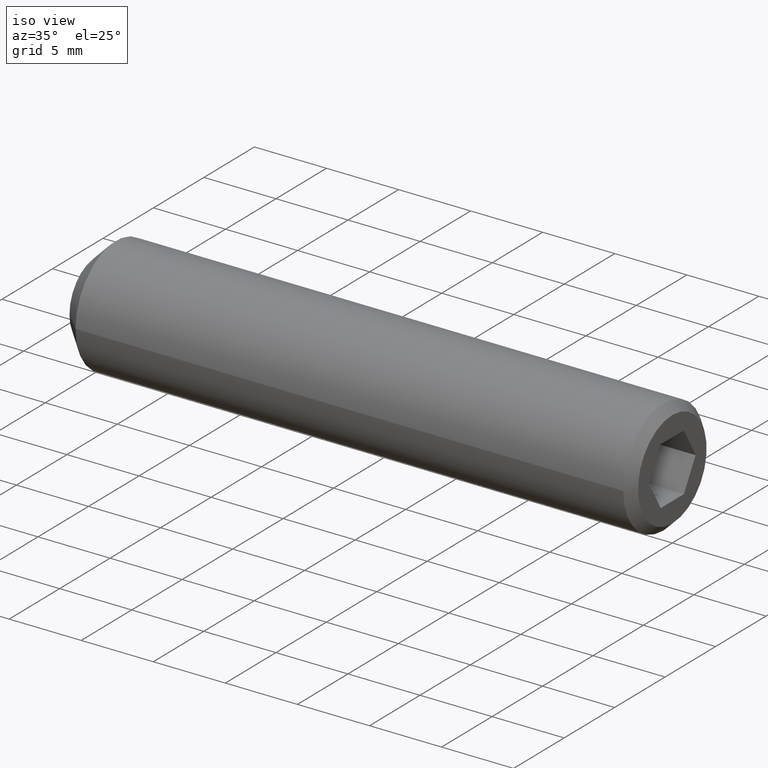
[diagram: clean part render]
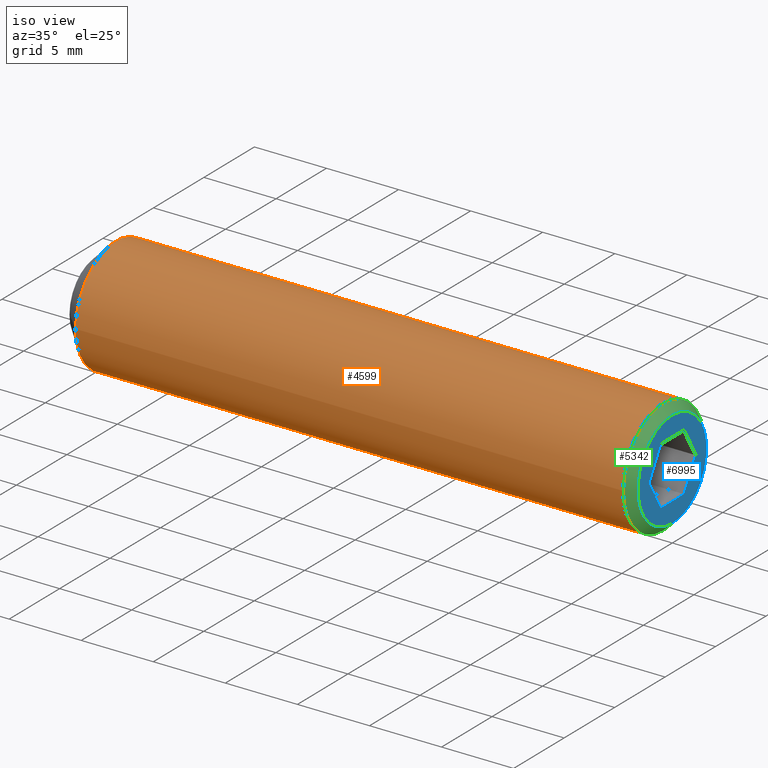
[diagram: same view with three faces highlighted in distinct colors, each labeled with its STEP entity id]
A machine part, iso view with three faces highlighted in distinct colors.
Their STEP definitions:

[orange] entity #4599 — the highlighted cylindrical surface (bore or boss wall) has radius 4 mm, axis along (-1, -0, -0).
#508 = CARTESIAN_POINT ( 'NONE',  ( 40.00000000000000000, 0.0000000000000000000, 0.0000000000000000000 ) ) ;
#1104 = CIRCLE ( 'NONE', #6778, 4.000000000000000000 ) ;
#1243 = AXIS2_PLACEMENT_3D ( 'NONE', #16921, #16802, #11553 ) ;
#1779 = CARTESIAN_POINT ( 'NONE',  ( 1.399999999999984100, -4.000000000000000000, 0.0000000000000000000 ) ) ;
#4555 = DIRECTION ( 'NONE',  ( -1.000000000000000000, -0.0000000000000000000, -0.0000000000000000000 ) ) ;
#4599 = ADVANCED_FACE ( 'NONE', ( #10565, #15870 ), #10146, .T. ) ;
#4856 = EDGE_LOOP ( 'NONE', ( #13042 ) ) ;
#5066 = EDGE_CURVE ( 'NONE', #10683, #10683, #9297, .T. ) ;
#6382 = AXIS2_PLACEMENT_3D ( 'NONE', #508, #4555, #12859 ) ;
#6778 = AXIS2_PLACEMENT_3D ( 'NONE', #14752, #12258, #16144 ) ;
#7002 = ORIENTED_EDGE ( 'NONE', *, *, #17359, .F. ) ;
#7495 = VERTEX_POINT ( 'NONE', #1779 ) ;
#9297 = CIRCLE ( 'NONE', #1243, 4.000000000000000000 ) ;
#10146 = CYLINDRICAL_SURFACE ( 'NONE', #6382, 4.000000000000000000 ) ;
#10565 = FACE_OUTER_BOUND ( 'NONE', #4856, .T. ) ;
#10683 = VERTEX_POINT ( 'NONE', #15615 ) ;
#11553 = DIRECTION ( 'NONE',  ( 0.0000000000000000000, 0.0000000000000000000, -1.000000000000000000 ) ) ;
#12258 = DIRECTION ( 'NONE',  ( -1.000000000000000000, 3.242134472605243700E-017, -0.0000000000000000000 ) ) ;
#12676 = EDGE_LOOP ( 'NONE', ( #7002 ) ) ;
#12859 = DIRECTION ( 'NONE',  ( 0.0000000000000000000, 0.0000000000000000000, 1.000000000000000000 ) ) ;
#13042 = ORIENTED_EDGE ( 'NONE', *, *, #5066, .T. ) ;
#14752 = CARTESIAN_POINT ( 'NONE',  ( 1.399999999999984400, -4.538988261647290200E-017, 0.0000000000000000000 ) ) ;
#15615 = CARTESIAN_POINT ( 'NONE',  ( 39.39999999999999900, 0.0000000000000000000, -4.000000000000000000 ) ) ;
#15870 = FACE_OUTER_BOUND ( 'NONE', #12676, .T. ) ;
#16144 = DIRECTION ( 'NONE',  ( -5.421010862427522200E-017, -1.000000000000000000, 0.0000000000000000000 ) ) ;
#16802 = DIRECTION ( 'NONE',  ( -1.000000000000000000, 0.0000000000000000000, 0.0000000000000000000 ) ) ;
#16921 = CARTESIAN_POINT ( 'NONE',  ( 39.39999999999999900, 0.0000000000000000000, 0.0000000000000000000 ) ) ;
#17359 = EDGE_CURVE ( 'NONE', #7495, #7495, #1104, .T. ) ;

[blue] entity #6995 — the highlighted planar face has unit normal (1, 0, 0).
#442 = ORIENTED_EDGE ( 'NONE', *, *, #3732, .F. ) ;
#598 = DIRECTION ( 'NONE',  ( 0.0000000000000000000, 0.4999999999999999400, 0.8660254037844387100 ) ) ;
#886 = CARTESIAN_POINT ( 'NONE',  ( 40.00000000000000000, -2.309401076758506000, 0.0000000000000000000 ) ) ;
#1237 = DIRECTION ( 'NONE',  ( 0.0000000000000000000, 0.4999999999999997800, -0.8660254037844387100 ) ) ;
#1318 = VERTEX_POINT ( 'NONE', #6176 ) ;
#1867 = VECTOR ( 'NONE', #598, 999.9999999999998900 ) ;
#2707 = EDGE_CURVE ( 'NONE', #8942, #12248, #13124, .T. ) ;
#2737 = LINE ( 'NONE', #11471, #4658 ) ;
#3183 = CARTESIAN_POINT ( 'NONE',  ( 40.00000000000000000, 0.0000000000000000000, 0.0000000000000000000 ) ) ;
#3612 = CARTESIAN_POINT ( 'NONE',  ( 40.00000000000000000, 0.0000000000000000000, 0.0000000000000000000 ) ) ;
#3716 = VERTEX_POINT ( 'NONE', #10050 ) ;
#3732 = EDGE_CURVE ( 'NONE', #11398, #8942, #6127, .T. ) ;
#4505 = VERTEX_POINT ( 'NONE', #9433 ) ;
#4550 = DIRECTION ( 'NONE',  ( 0.0000000000000000000, -0.5000000000000003300, -0.8660254037844384900 ) ) ;
#4658 = VECTOR ( 'NONE', #7417, 1000.000000000000000 ) ;
#4887 = ORIENTED_EDGE ( 'NONE', *, *, #10494, .F. ) ;
#4991 = DIRECTION ( 'NONE',  ( 1.000000000000000000, 0.0000000000000000000, 0.0000000000000000000 ) ) ;
#5101 = VERTEX_POINT ( 'NONE', #886 ) ;
#5727 = CARTESIAN_POINT ( 'NONE',  ( 40.00000000000000000, 2.309401076758500700, -2.008531840100152800E-016 ) ) ;
#5752 = CARTESIAN_POINT ( 'NONE',  ( 40.00000000000000000, 1.154700538379249500, 2.000000000000000000 ) ) ;
#6127 = LINE ( 'NONE', #5727, #9942 ) ;
#6176 = CARTESIAN_POINT ( 'NONE',  ( 40.00000000000000000, 0.0000000000000000000, -3.399999999999997200 ) ) ;
#6995 = ADVANCED_FACE ( 'NONE', ( #11143, #13894 ), #10330, .T. ) ;
#7276 = CARTESIAN_POINT ( 'NONE',  ( 40.00000000000000000, -1.154700538379254300, 2.000000000000000000 ) ) ;
#7417 = DIRECTION ( 'NONE',  ( 0.0000000000000000000, 1.000000000000000000, 1.877893248421447600E-016 ) ) ;
#7658 = EDGE_LOOP ( 'NONE', ( #11062, #13186, #442, #14380, #15363, #4887 ) ) ;
#7759 = CARTESIAN_POINT ( 'NONE',  ( 40.00000000000000000, 2.309401076758500700, -2.008531840100152800E-016 ) ) ;
#7773 = DIRECTION ( 'NONE',  ( 0.0000000000000000000, 0.0000000000000000000, -1.000000000000000000 ) ) ;
#7805 = VECTOR ( 'NONE', #12289, 1000.000000000000000 ) ;
#8323 = VECTOR ( 'NONE', #1237, 1000.000000000000200 ) ;
#8942 = VERTEX_POINT ( 'NONE', #14646 ) ;
#9433 = CARTESIAN_POINT ( 'NONE',  ( 40.00000000000000000, -1.154700538379255700, -2.000000000000000000 ) ) ;
#9439 = ORIENTED_EDGE ( 'NONE', *, *, #16203, .T. ) ;
#9592 = AXIS2_PLACEMENT_3D ( 'NONE', #3612, #4991, #7773 ) ;
#9942 = VECTOR ( 'NONE', #16559, 1000.000000000000000 ) ;
#10050 = CARTESIAN_POINT ( 'NONE',  ( 40.00000000000000000, 1.154700538379249500, -1.999999999999999600 ) ) ;
#10330 = PLANE ( 'NONE',  #9592 ) ;
#10494 = EDGE_CURVE ( 'NONE', #5101, #4505, #16578, .T. ) ;
#11062 = ORIENTED_EDGE ( 'NONE', *, *, #13331, .F. ) ;
#11143 = FACE_BOUND ( 'NONE', #7658, .T. ) ;
#11398 = VERTEX_POINT ( 'NONE', #7759 ) ;
#11471 = CARTESIAN_POINT ( 'NONE',  ( 40.00000000000000000, -1.154700538379255700, -2.000000000000000000 ) ) ;
#11896 = AXIS2_PLACEMENT_3D ( 'NONE', #3183, #12466, #12697 ) ;
#12067 = CARTESIAN_POINT ( 'NONE',  ( 40.00000000000000000, -2.309401076758506500, -4.766870681724039000E-018 ) ) ;
#12248 = VERTEX_POINT ( 'NONE', #14162 ) ;
#12289 = DIRECTION ( 'NONE',  ( 0.0000000000000000000, -1.000000000000000000, 0.0000000000000000000 ) ) ;
#12466 = DIRECTION ( 'NONE',  ( 1.000000000000000000, 0.0000000000000000000, 0.0000000000000000000 ) ) ;
#12697 = DIRECTION ( 'NONE',  ( 0.0000000000000000000, 0.0000000000000000000, -1.000000000000000000 ) ) ;
#12769 = CARTESIAN_POINT ( 'NONE',  ( 40.00000000000000000, 1.154700538379249500, -1.999999999999999600 ) ) ;
#13124 = LINE ( 'NONE', #5752, #7805 ) ;
#13186 = ORIENTED_EDGE ( 'NONE', *, *, #2707, .F. ) ;
#13331 = EDGE_CURVE ( 'NONE', #12248, #5101, #15788, .T. ) ;
#13894 = FACE_OUTER_BOUND ( 'NONE', #14252, .T. ) ;
#14162 = CARTESIAN_POINT ( 'NONE',  ( 40.00000000000000000, -1.154700538379254300, 2.000000000000000000 ) ) ;
#14252 = EDGE_LOOP ( 'NONE', ( #9439 ) ) ;
#14380 = ORIENTED_EDGE ( 'NONE', *, *, #15950, .F. ) ;
#14646 = CARTESIAN_POINT ( 'NONE',  ( 40.00000000000000000, 1.154700538379249500, 2.000000000000000000 ) ) ;
#14844 = CIRCLE ( 'NONE', #11896, 3.399999999999997200 ) ;
#14957 = VECTOR ( 'NONE', #4550, 1000.000000000000100 ) ;
#15363 = ORIENTED_EDGE ( 'NONE', *, *, #15410, .F. ) ;
#15410 = EDGE_CURVE ( 'NONE', #4505, #3716, #2737, .T. ) ;
#15683 = LINE ( 'NONE', #12769, #1867 ) ;
#15788 = LINE ( 'NONE', #7276, #14957 ) ;
#15950 = EDGE_CURVE ( 'NONE', #3716, #11398, #15683, .T. ) ;
#16203 = EDGE_CURVE ( 'NONE', #1318, #1318, #14844, .T. ) ;
#16559 = DIRECTION ( 'NONE',  ( 0.0000000000000000000, -0.4999999999999998900, 0.8660254037844387100 ) ) ;
#16578 = LINE ( 'NONE', #12067, #8323 ) ;

[green] entity #5342 — the highlighted conical surface has half-angle 45 deg.
#87 = EDGE_LOOP ( 'NONE', ( #1394 ) ) ;
#1243 = AXIS2_PLACEMENT_3D ( 'NONE', #16921, #16802, #11553 ) ;
#1318 = VERTEX_POINT ( 'NONE', #6176 ) ;
#1394 = ORIENTED_EDGE ( 'NONE', *, *, #5066, .F. ) ;
#2248 = CONICAL_SURFACE ( 'NONE', #3650, 3.399999999999997200, 0.7853981633974479500 ) ;
#2617 = CARTESIAN_POINT ( 'NONE',  ( 40.00000000000000000, 0.0000000000000000000, 0.0000000000000000000 ) ) ;
#3183 = CARTESIAN_POINT ( 'NONE',  ( 40.00000000000000000, 0.0000000000000000000, 0.0000000000000000000 ) ) ;
#3506 = ORIENTED_EDGE ( 'NONE', *, *, #16203, .F. ) ;
#3650 = AXIS2_PLACEMENT_3D ( 'NONE', #2617, #14857, #8093 ) ;
#5066 = EDGE_CURVE ( 'NONE', #10683, #10683, #9297, .T. ) ;
#5342 = ADVANCED_FACE ( 'NONE', ( #15439, #11211 ), #2248, .T. ) ;
#6176 = CARTESIAN_POINT ( 'NONE',  ( 40.00000000000000000, 0.0000000000000000000, -3.399999999999997200 ) ) ;
#8093 = DIRECTION ( 'NONE',  ( 0.0000000000000000000, 0.0000000000000000000, 1.000000000000000000 ) ) ;
#9297 = CIRCLE ( 'NONE', #1243, 4.000000000000000000 ) ;
#10683 = VERTEX_POINT ( 'NONE', #15615 ) ;
#11211 = FACE_BOUND ( 'NONE', #12814, .T. ) ;
#11553 = DIRECTION ( 'NONE',  ( 0.0000000000000000000, 0.0000000000000000000, -1.000000000000000000 ) ) ;
#11896 = AXIS2_PLACEMENT_3D ( 'NONE', #3183, #12466, #12697 ) ;
#12466 = DIRECTION ( 'NONE',  ( 1.000000000000000000, 0.0000000000000000000, 0.0000000000000000000 ) ) ;
#12697 = DIRECTION ( 'NONE',  ( 0.0000000000000000000, 0.0000000000000000000, -1.000000000000000000 ) ) ;
#12814 = EDGE_LOOP ( 'NONE', ( #3506 ) ) ;
#14844 = CIRCLE ( 'NONE', #11896, 3.399999999999997200 ) ;
#14857 = DIRECTION ( 'NONE',  ( -1.000000000000000000, 0.0000000000000000000, 0.0000000000000000000 ) ) ;
#15439 = FACE_OUTER_BOUND ( 'NONE', #87, .T. ) ;
#15615 = CARTESIAN_POINT ( 'NONE',  ( 39.39999999999999900, 0.0000000000000000000, -4.000000000000000000 ) ) ;
#16203 = EDGE_CURVE ( 'NONE', #1318, #1318, #14844, .T. ) ;
#16802 = DIRECTION ( 'NONE',  ( -1.000000000000000000, 0.0000000000000000000, 0.0000000000000000000 ) ) ;
#16921 = CARTESIAN_POINT ( 'NONE',  ( 39.39999999999999900, 0.0000000000000000000, 0.0000000000000000000 ) ) ;